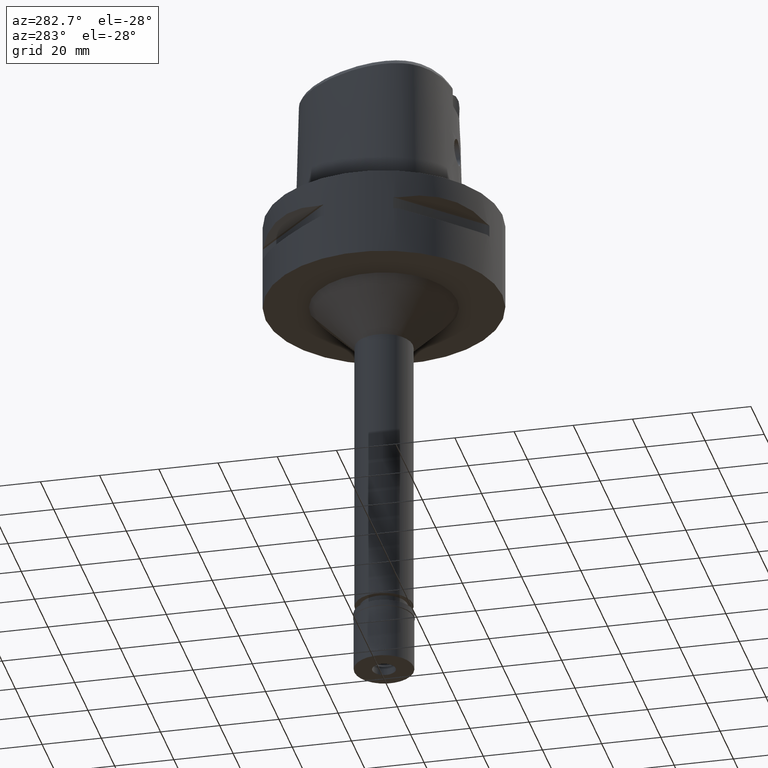
[diagram: clean part render]
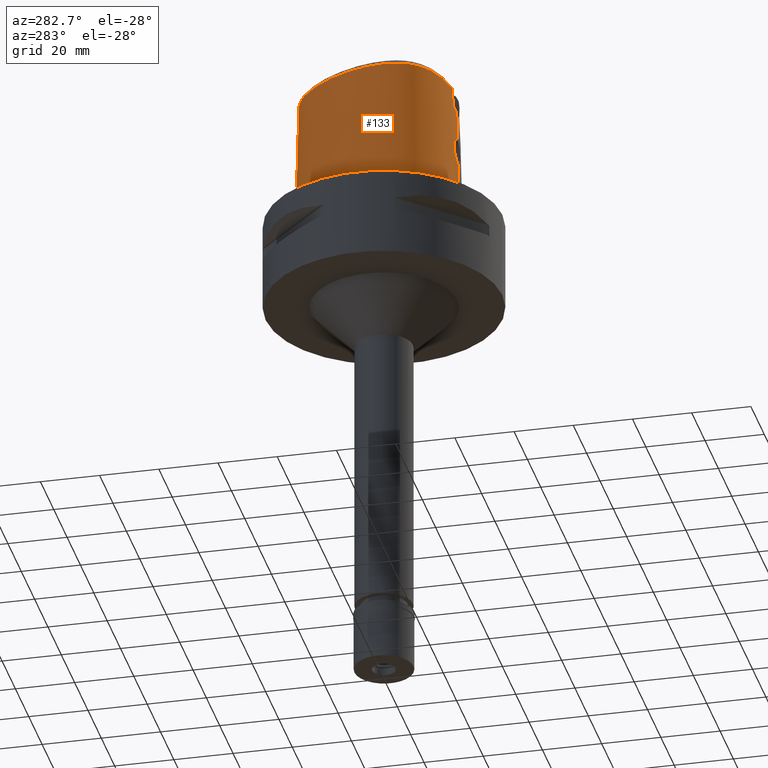
[diagram: same view with one face highlighted and labeled with its STEP entity id]
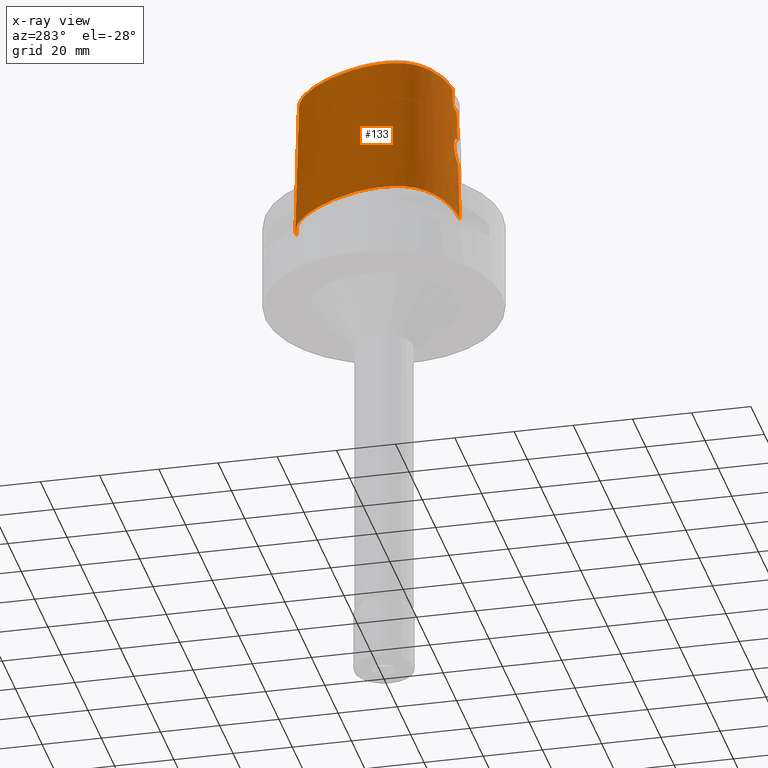
[diagram: x-ray of the same camera — body ghosted, the highlighted face saturated]
A machine part, auxiliary view. The second image highlights one B-rep face of the part: STEP entity #133.
The next image is the same camera in x-ray: the body ghosted, the highlighted face saturated — about 2% of this face is hidden behind the body in this view.
In plain terms, the highlighted face is a freeform B-spline surface patch.
Its self-contained STEP definition (entity closure, byte-faithful):
#16 = CARTESIAN_POINT ( 'NONE',  ( -2.978031838721042046, -24.94531787462550199, 21.54303487591371891 ) ) ;
#32 = CARTESIAN_POINT ( 'NONE',  ( -20.71467387648337066, -18.66855143331233435, 46.52070903171009775 ) ) ;
#56 = CARTESIAN_POINT ( 'NONE',  ( -26.36214112504000084, -1.945111148043999982, 47.45113829603000255 ) ) ;
#80 = CARTESIAN_POINT ( 'NONE',  ( -25.30843714907000219, -14.61183300056999990, 15.19676978108000043 ) ) ;
#105 = CARTESIAN_POINT ( 'NONE',  ( -1.451045074373000022E-08, -24.57504746727000011, 40.00000005214000254 ) ) ;
#107 = CARTESIAN_POINT ( 'NONE',  ( -9.316733117262000263, 26.81182150639000028, -0.9304144763927000295 ) ) ;
#133 = ADVANCED_FACE ( 'NONE', ( #1479 ), #3552, .T. ) ;
#157 = CARTESIAN_POINT ( 'NONE',  ( -2.393548608048999604, -25.62160468836000149, -0.9304144763927000295 ) ) ;
#184 = B_SPLINE_CURVE_WITH_KNOTS ( 'NONE', 3,
 ( #1542, #3118, #4635, #2711 ),
 .UNSPECIFIED., .F., .F.,
 ( 4, 4 ),
 ( 0.0000000000000000000, 1.000000000000000000 ),
 .UNSPECIFIED. ) ;
#187 = CARTESIAN_POINT ( 'NONE',  ( -6.271543170509000120, 28.37237220519999781, -0.9304144763927000295 ) ) ;
#215 = CARTESIAN_POINT ( 'NONE',  ( -14.86558287303000014, -21.85772792995999936, 47.45113829603000255 ) ) ;
#220 = VERTEX_POINT ( 'NONE', #3888 ) ;
#234 = CARTESIAN_POINT ( 'NONE',  ( -11.64093424010000000, -23.76831843816999523, 15.19676978108000043 ) ) ;
#245 = CARTESIAN_POINT ( 'NONE',  ( -3.149084873927517236, 29.34015624734590588, 1.081107220890151210E-07 ) ) ;
#295 = CARTESIAN_POINT ( 'NONE',  ( -4.098396066246055902, -24.72479182399337461, 26.97739233805751269 ) ) ;
#312 = CARTESIAN_POINT ( 'NONE',  ( -3.797137772289172375, -24.86229941254662279, 22.49313827486260564 ) ) ;
#321 = CARTESIAN_POINT ( 'NONE',  ( -2.249867388139984214, -24.79844751147312465, 28.95562542824798058 ) ) ;
#330 = CARTESIAN_POINT ( 'NONE',  ( -25.20914249734864754, 6.827421873979051092, 1.081107220890151210E-07 ) ) ;
#338 = CARTESIAN_POINT ( 'NONE',  ( -3.957281473798043514, -24.84276546235786043, 22.75305380327923999 ) ) ;
#361 = CARTESIAN_POINT ( 'NONE',  ( -1.049694957958702712, 29.57499999730015006, 1.081107220890151210E-07 ) ) ;
#374 = B_SPLINE_CURVE_WITH_KNOTS ( 'NONE', 3,
 ( #4319, #3540, #3461, #3060 ),
 .UNSPECIFIED., .F., .F.,
 ( 4, 4 ),
 ( 0.0000000000000000000, 1.000000000000000000 ),
 .UNSPECIFIED. ) ;
#380 = CARTESIAN_POINT ( 'NONE',  ( -1.371865276106448261, -24.82198728018540734, 29.33894196721532310 ) ) ;
#387 = CARTESIAN_POINT ( 'NONE',  ( -21.32746397970844399, 12.31340991043395761, 46.52070903171009775 ) ) ;
#398 = CARTESIAN_POINT ( 'NONE',  ( -3.227056402119971690, -24.92183285210593269, 21.79239637393090590 ) ) ;
#405 = CARTESIAN_POINT ( 'NONE',  ( -1.858668925429011187, -24.81033890557745281, 29.15501574767838733 ) ) ;
#406 = ORIENTED_EDGE ( 'NONE', *, *, #3039, .T. ) ;
#464 = CARTESIAN_POINT ( 'NONE',  ( -26.79474625771999996, 1.906447387330000076, -0.9304144763927000295 ) ) ;
#487 = CARTESIAN_POINT ( 'NONE',  ( -7.937300651752360103, -23.78071178103856553, 46.52070903171009775 ) ) ;
#488 = CARTESIAN_POINT ( 'NONE',  ( -25.65830880163000316, -14.81383149358999951, -0.9304144763927000295 ) ) ;
#501 = VERTEX_POINT ( 'NONE', #618 ) ;
#514 = CARTESIAN_POINT ( 'NONE',  ( -12.96695410020000061, 23.75598709915999862, 15.19676978108000043 ) ) ;
#543 = CARTESIAN_POINT ( 'NONE',  ( -26.66520868673000066, -5.367805582503000217, 47.45113829603000255 ) ) ;
#561 = DIRECTION ( 'NONE',  ( 9.468170009258231965E-13, 0.02499051293976060906, -0.9996876883622242138 ) ) ;
#566 = CARTESIAN_POINT ( 'NONE',  ( -8.894849814792998188, 26.12169678492999836, 31.32395403855000282 ) ) ;
#588 = CARTESIAN_POINT ( 'NONE',  ( 0.5595577616861000525, -24.78951189438999947, 31.32395403855000282 ) ) ;
#614 = CARTESIAN_POINT ( 'NONE',  ( -15.30623779600000134, -22.98697010186999989, -0.9304144763927000295 ) ) ;
#618 = CARTESIAN_POINT ( 'NONE',  ( -4.472216406693000579, -24.20008985674000357, 46.52070903171000538 ) ) ;
#648 = CARTESIAN_POINT ( 'NONE',  ( -18.55019648953511435, -21.45394531012197703, 1.081107220890151210E-07 ) ) ;
#660 = CARTESIAN_POINT ( 'NONE',  ( -18.56135208395999925, -21.47443746689999955, -0.9304144763927000295 ) ) ;
#696 = CARTESIAN_POINT ( 'NONE',  ( -4.472216406693000579, -24.20008985674000357, 46.52070903171000538 ) ) ;
#700 = CARTESIAN_POINT ( 'NONE',  ( -25.63812389625229216, -14.80217773302317141, 1.081107220890151210E-07 ) ) ;
#720 = CARTESIAN_POINT ( 'NONE',  ( -4.160790905031579001, -24.72274124955068686, 26.84178595757023444 ) ) ;
#763 = CARTESIAN_POINT ( 'NONE',  ( -3.896481458106559881, -24.85034248778501365, 22.65020889969181539 ) ) ;
#774 = CARTESIAN_POINT ( 'NONE',  ( -2.771982096822934505, -24.77983138410381869, 28.61121349796145807 ) ) ;
#779 = CARTESIAN_POINT ( 'NONE',  ( -12.44957317646843009, 23.16260189109612000, 46.52070903171009775 ) ) ;
#805 = CARTESIAN_POINT ( 'NONE',  ( -4.549596676163453424, -24.73138399865687731, 25.07048059281705576 ) ) ;
#819 = CARTESIAN_POINT ( 'NONE',  ( -1.888484788632717848, -25.01654759054933308, 20.86028587657998656 ) ) ;
#842 = CARTESIAN_POINT ( 'NONE',  ( -2.039991806420665021, -25.00858519317946360, 20.93235562228053226 ) ) ;
#857 = CARTESIAN_POINT ( 'NONE',  ( -26.68853359099139055, -5.367220537273029279, 46.52070903171009775 ) ) ;
#859 = CARTESIAN_POINT ( 'NONE',  ( -22.35908247767000034, 12.90902243050999942, -0.9304144763927000295 ) ) ;
#908 = CARTESIAN_POINT ( 'NONE',  ( -22.00846693117999919, 12.70659196843999972, 15.19676978108000043 ) ) ;
#918 = EDGE_CURVE ( 'NONE', #3978, #220, #3244, .T. ) ;
#936 = CARTESIAN_POINT ( 'NONE',  ( -25.23075706180999944, 6.836210430563999907, -0.9304144763927000295 ) ) ;
#966 = CARTESIAN_POINT ( 'NONE',  ( -26.50159628870000006, -8.602222732530000471, 47.45113829603000255 ) ) ;
#1015 = CARTESIAN_POINT ( 'NONE',  ( 0.8462420188559000023, -25.18772736009000113, 15.19676978108000043 ) ) ;
#1020 = ORIENTED_EDGE ( 'NONE', *, *, #2584, .F. ) ;
#1023 = CARTESIAN_POINT ( 'NONE',  ( -1.150414049173519748, -24.82628098737378153, 29.40485804970605699 ) ) ;
#1039 = CARTESIAN_POINT ( 'NONE',  ( -24.14246365694000218, -15.65707285815000027, 31.32395403855000282 ) ) ;
#1062 = CARTESIAN_POINT ( 'NONE',  ( 0.5902542487185999942, 29.18556700428999662, 15.19676978108000043 ) ) ;
#1065 = CARTESIAN_POINT ( 'NONE',  ( -2.354156828688999781, -24.81494221514999765, 31.32395403855000282 ) ) ;
#1067 = B_SPLINE_CURVE_WITH_KNOTS ( 'NONE', 3,
 ( #2315, #361, #245, #1902, #3871, #1852, #3897, #3929, #330, #3434, #2239, #1098, #5142, #1467, #2686, #700, #2292, #3483, #1569, #648, #3816, #5029, #5081, #3089, #4694 ),
 .UNSPECIFIED., .F., .F.,
 ( 4, 1, 1, 1, 1, 1, 1, 1, 1, 1, 1, 1, 1, 1, 1, 1, 1, 1, 1, 1, 1, 1, 4 ),
 ( 0.0000000000000000000, 0.04166666666704999661, 0.08333333333368000972, 0.1250000000003000100, 0.1666666666670000019, 0.2500000000002000067, 0.3333333333335000148, 0.4166666666668000230, 0.4583333333333999837, 0.5000000000001000311, 0.5416666666667000474, 0.5833333333333000637, 0.6250000000000000000, 0.6458333333333000637, 0.6666666666667000474, 0.6874999999999000799, 0.7083333333332000326, 0.7499999999999000799, 0.7916666666666000163, 0.8333333333331000015, 0.8749999999998000488, 0.9166666666664999852, 1.000000000000000000 ),
 .UNSPECIFIED. ) ;
#1086 = CARTESIAN_POINT ( 'NONE',  ( 0.9115101685673999699, 29.56851175997000070, -0.9304144763927000295 ) ) ;
#1090 = CARTESIAN_POINT ( 'NONE',  ( -23.44929528154000309, -17.78045351947999819, -0.9304144763927000295 ) ) ;
#1098 = CARTESIAN_POINT ( 'NONE',  ( -27.85475989473649250, -5.337968750068384338, 1.081107220890151210E-07 ) ) ;
#1113 = CARTESIAN_POINT ( 'NONE',  ( -1.003044292487226929, -24.82866638025620887, 29.44055839642895478 ) ) ;
#1132 = CARTESIAN_POINT ( 'NONE',  ( -1.165430911961757188, -25.05044697737379167, 20.55812161079594347 ) ) ;
#1141 = CARTESIAN_POINT ( 'NONE',  ( -4.201380620709784353, -24.72153596869750913, 26.74670933509911563 ) ) ;
#1161 = CARTESIAN_POINT ( 'NONE',  ( -3.702709904148339781, -24.87336589807970100, 22.35148037005131272 ) ) ;
#1172 = CARTESIAN_POINT ( 'NONE',  ( -1.733314166582773153, -24.81359117582309892, 29.20692116581517084 ) ) ;
#1175 = CARTESIAN_POINT ( 'NONE',  ( -25.97777222568459266, -11.09135444108253843, 46.52070903171009775 ) ) ;
#1190 = CARTESIAN_POINT ( 'NONE',  ( -3.232655617673357185, -24.92130312931369218, 21.79804365392788768 ) ) ;
#1203 = CARTESIAN_POINT ( 'NONE',  ( -3.459328791574007411, -24.75086403572711191, 27.97515479134742833 ) ) ;
#1219 = CARTESIAN_POINT ( 'NONE',  ( -4.156037652092123835, -24.81598364112163679, 23.14362525770374646 ) ) ;
#1224 = VECTOR ( 'NONE', #561, 1000.000000000000227 ) ;
#1237 = CARTESIAN_POINT ( 'NONE',  ( -24.62887906780939318, -14.21948995895654022, 46.52070903171009775 ) ) ;
#1244 = CARTESIAN_POINT ( 'NONE',  ( -3.808704889424079809, -24.86093372512832289, 22.51074749453151114 ) ) ;
#1258 = CARTESIAN_POINT ( 'NONE',  ( -1.346037188249999996E-11, 28.41206021534999593, 46.52071719450999154 ) ) ;
#1352 = CARTESIAN_POINT ( 'NONE',  ( -27.47379251623999963, -5.347524336879999396, 15.19676978108000043 ) ) ;
#1376 = CARTESIAN_POINT ( 'NONE',  ( -0.7039271475812000078, 28.82397290591000427, 31.32395403855000282 ) ) ;
#1405 = CARTESIAN_POINT ( 'NONE',  ( -15.01246784735000084, -22.23414198726000279, 31.32395403855000282 ) ) ;
#1451 = CARTESIAN_POINT ( 'NONE',  ( -4.602965878455999693, -24.35127227233000013, 40.00000000000000000 ) ) ;
#1453 = CARTESIAN_POINT ( 'NONE',  ( -2.334460939009000313, -24.41161097854999795, 47.45113829603000255 ) ) ;
#1467 = CARTESIAN_POINT ( 'NONE',  ( -27.10051717109255165, -11.41106445238337486, 1.081107220890151210E-07 ) ) ;
#1479 = FACE_OUTER_BOUND ( 'NONE', #4684, .T. ) ;
#1506 = CARTESIAN_POINT ( 'NONE',  ( -4.494536868534346752, -24.72037511897826789, 25.72370608056143837 ) ) ;
#1534 = CARTESIAN_POINT ( 'NONE',  ( -0.5644801122068425769, -24.83439132317404230, 29.52465347867333634 ) ) ;
#1542 = CARTESIAN_POINT ( 'NONE',  ( -1.451045074373000022E-08, -24.57504746727000011, 40.00000005214000254 ) ) ;
#1548 = CARTESIAN_POINT ( 'NONE',  ( -1.405744793948999911E-12, -25.06378435148999984, 20.44999999999999929 ) ) ;
#1559 = CARTESIAN_POINT ( 'NONE',  ( -3.657706900528192584, -24.74222987758971115, 27.72260022702115734 ) ) ;
#1562 = CARTESIAN_POINT ( 'NONE',  ( -24.12841474589034974, 6.387994236496290057, 46.52070903171009775 ) ) ;
#1569 = CARTESIAN_POINT ( 'NONE',  ( -21.42129059199266905, -19.59889648221216518, 1.081107220890151210E-07 ) ) ;
#1575 = CARTESIAN_POINT ( 'NONE',  ( -2.349040166738168622, -24.99044712210619679, 21.10040994411799176 ) ) ;
#1581 = CARTESIAN_POINT ( 'NONE',  ( -4.515545264919025747, -24.72200876241212697, 25.57765437787082163 ) ) ;
#1585 = CARTESIAN_POINT ( 'NONE',  ( -0.9629684636073263526, 28.41206041874331945, 46.52070903171009775 ) ) ;
#1600 = CARTESIAN_POINT ( 'NONE',  ( -4.219931661120497779, -24.80642684597901848, 23.29859562715307675 ) ) ;
#1647 = CARTESIAN_POINT ( 'NONE',  ( -26.52477687770711512, -8.605158286269462664, 46.52070903171009775 ) ) ;
#1667 = CARTESIAN_POINT ( 'NONE',  ( -1.346037188249999996E-11, 28.41206021534999593, 46.52071719450999154 ) ) ;
#1668 = CARTESIAN_POINT ( 'NONE',  ( -27.87808443098999689, -5.337383714069000362, -0.9304144763927000295 ) ) ;
#1674 = VERTEX_POINT ( 'NONE', #2487 ) ;
#1695 = CARTESIAN_POINT ( 'NONE',  ( -27.30517726890999697, -8.703986978065000102, 15.19676978108000043 ) ) ;
#1717 = CARTESIAN_POINT ( 'NONE',  ( -1.541632516112891427, -24.57506718850316929, 40.00000010711480058 ) ) ;
#1719 = CARTESIAN_POINT ( 'NONE',  ( -12.43420517475000153, 23.14497629942999879, 47.45113829603000255 ) ) ;
#1742 = CARTESIAN_POINT ( 'NONE',  ( -24.85610465468000285, 6.683875467458999964, 15.19676978108000043 ) ) ;
#1758 = LINE ( 'NONE', #3707, #1224 ) ;
#1787 = CARTESIAN_POINT ( 'NONE',  ( -6.114741924760999758, 27.99897533574999997, 15.19676978108000043 ) ) ;
#1791 = CARTESIAN_POINT ( 'NONE',  ( 0.8321919557715999893, -24.38153432968000089, 47.45113829603000255 ) ) ;
#1814 = CARTESIAN_POINT ( 'NONE',  ( -11.74634101483999871, -24.15815461092999783, -0.9304144763927000295 ) ) ;
#1836 = CARTESIAN_POINT ( 'NONE',  ( -20.94550185283999966, -18.97246395085999993, 31.32395403855000282 ) ) ;
#1852 = CARTESIAN_POINT ( 'NONE',  ( -13.21796080366969761, 24.04386718545104884, 1.081107220890151210E-07 ) ) ;
#1857 = CARTESIAN_POINT ( 'NONE',  ( -3.192130741525157855, -24.76262039752747057, 28.24235843699960569 ) ) ;
#1895 = CARTESIAN_POINT ( 'NONE',  ( -4.322680882352817555, -24.71812462909636210, 26.45319451589575266 ) ) ;
#1902 = CARTESIAN_POINT ( 'NONE',  ( -6.262496943741631128, 28.35083007561321367, 1.081107220890151210E-07 ) ) ;
#1910 = CARTESIAN_POINT ( 'NONE',  ( -4.207829589086045985, -24.80824686016802261, 23.26889234074807078 ) ) ;
#1917 = CARTESIAN_POINT ( 'NONE',  ( -1.482686770870140114, -24.81966152212502763, 29.30289444251079800 ) ) ;
#1935 = CARTESIAN_POINT ( 'NONE',  ( -4.212409792926581353, -24.80756021599265537, 23.28005703556016925 ) ) ;
#1975 = CARTESIAN_POINT ( 'NONE',  ( -3.211065830876445037, -24.76179211193618457, 28.22361125334742482 ) ) ;
#1980 = CARTESIAN_POINT ( 'NONE',  ( -2.897876354790306141, 28.19692242654317837, 46.52070903171009775 ) ) ;
#1990 = CARTESIAN_POINT ( 'NONE',  ( -3.825895809632645417, -24.85889621362734303, 22.53711802513210216 ) ) ;
#2005 = CARTESIAN_POINT ( 'NONE',  ( -11.43620194735458107, -23.01113699853129546, 46.52070903171009775 ) ) ;
#2016 = CARTESIAN_POINT ( 'NONE',  ( -1.843442154715413395, -25.01881181296652912, 20.83994273181284385 ) ) ;
#2078 = CARTESIAN_POINT ( 'NONE',  ( -17.77103258626999605, 19.53703864445999727, -0.9304144763927000295 ) ) ;
#2104 = CARTESIAN_POINT ( 'NONE',  ( -24.48145224753999827, 6.531540504352999932, 31.32395403855000282 ) ) ;
#2111 = ORIENTED_EDGE ( 'NONE', *, *, #4963, .T. ) ;
#2130 = CARTESIAN_POINT ( 'NONE',  ( -27.12297207980000024, -11.41745865540000082, -0.9304144763927000295 ) ) ;
#2172 = CARTESIAN_POINT ( 'NONE',  ( 0.6077626423659999721, 29.58843421366000115, -0.9304144763927000295 ) ) ;
#2176 = CARTESIAN_POINT ( 'NONE',  ( 0.8392169873136999803, -24.78463084487999879, 31.32395403855000282 ) ) ;
#2206 = CARTESIAN_POINT ( 'NONE',  ( -20.70054131303000133, -18.64994423063999918, 47.45113829603000255 ) ) ;
#2215 = CARTESIAN_POINT ( 'NONE',  ( -2.520279592226922993, -24.78912363236071315, 28.78824203054359288 ) ) ;
#2231 = CARTESIAN_POINT ( 'NONE',  ( -21.19046239266000242, -19.29498367109000156, 15.19676978108000043 ) ) ;
#2239 = CARTESIAN_POINT ( 'NONE',  ( -27.53737511592663623, -1.765625000409068557, 1.081107220890151210E-07 ) ) ;
#2276 = CARTESIAN_POINT ( 'NONE',  ( 0.5552374614238999584, 28.37983258556999999, 47.45113829603000255 ) ) ;
#2292 = CARTESIAN_POINT ( 'NONE',  ( -24.77458493275388918, -16.12173827965531459, 1.081107220890151210E-07 ) ) ;
#2306 = CARTESIAN_POINT ( 'NONE',  ( -4.198926685531663594, -24.72160612811941505, 26.75259212958650323 ) ) ;
#2315 = CARTESIAN_POINT ( 'NONE',  ( 3.059999461773999954E-11, 29.57499999998999840, 5.010806584474999824E-14 ) ) ;
#2334 = CARTESIAN_POINT ( 'NONE',  ( -3.125212091967373595, -24.76551320166747416, 28.30726214217308723 ) ) ;
#2353 = CARTESIAN_POINT ( 'NONE',  ( -1.754298049354317213, -25.02308377135080875, 20.80178576367013932 ) ) ;
#2363 = CARTESIAN_POINT ( 'NONE',  ( -2.352923008986411268, -24.79499099983797450, 28.89459205334612335 ) ) ;
#2366 = ORIENTED_EDGE ( 'NONE', *, *, #4426, .F. ) ;
#2379 = CARTESIAN_POINT ( 'NONE',  ( -1.791332517422943749, -25.02133236723710041, 20.81740716610678987 ) ) ;
#2388 = B_SPLINE_CURVE_WITH_KNOTS ( 'NONE', 3,
 ( #105, #1717, #3827, #1451 ),
 .UNSPECIFIED., .F., .F.,
 ( 4, 4 ),
 ( 0.0000000000000000000, 1.000000000000000000 ),
 .UNSPECIFIED. ) ;
#2391 = CARTESIAN_POINT ( 'NONE',  ( -4.550009659928407224, -24.73228693208369933, 25.03285394944704123 ) ) ;
#2405 = CARTESIAN_POINT ( 'NONE',  ( -1.748501813549813599, -25.02335543620022307, 20.79936485166495430 ) ) ;
#2432 = B_SPLINE_CURVE_WITH_KNOTS ( 'NONE', 3,
 ( #696, #3057, #487, #2005, #3534, #4795, #32, #4844, #4737, #1237, #3202, #1175, #1647, #857, #3615, #2757, #1562, #387, #3227, #779, #5163, #2811, #1980, #1585, #1667 ),
 .UNSPECIFIED., .F., .F.,
 ( 4, 1, 1, 1, 1, 1, 1, 1, 1, 1, 1, 1, 1, 1, 1, 1, 1, 1, 1, 1, 1, 1, 4 ),
 ( 0.0000000000000000000, 0.03735859270279102973, 0.08111502030725251111, 0.1248714479117141174, 0.1686278755159656140, 0.2123843031204271092, 0.2561407307248886878, 0.2780189445270669357, 0.2998971583291402121, 0.3217753721314234872, 0.3436535859336017906, 0.3874100135380633136, 0.4311664411424198651, 0.4749228687467764165, 0.5186792963512379950, 0.5624357239555944910, 0.6499485791644126209, 0.7374614343732307509, 0.8249742895819437427, 0.8687307171864053768, 0.9124871447907828559, 0.9562435723951708821, 1.000000000000000000 ),
 .UNSPECIFIED. ) ;
#2450 = CARTESIAN_POINT ( 'NONE',  ( -5.957940679013999485, 27.62557846629000124, 31.32395403855000282 ) ) ;
#2487 = CARTESIAN_POINT ( 'NONE',  ( -1.451045074373000022E-08, -24.57504746727000011, 40.00000005214000254 ) ) ;
#2501 = CARTESIAN_POINT ( 'NONE',  ( -24.10679984039999724, 6.379205541247999989, 47.45113829603000255 ) ) ;
#2555 = CARTESIAN_POINT ( 'NONE',  ( -25.26074793916000161, -12.91722051712999964, 47.45113829603000255 ) ) ;
#2575 = CARTESIAN_POINT ( 'NONE',  ( -3.154109046502999725, 29.36302093374000322, -0.9304144763927000295 ) ) ;
#2578 = CARTESIAN_POINT ( 'NONE',  ( -6.584202217038999549, -24.46732447795000098, 31.32395403855000282 ) ) ;
#2584 = EDGE_CURVE ( 'NONE', #3086, #3978, #3251, .T. ) ;
#2611 = CARTESIAN_POINT ( 'NONE',  ( -1.984502176480205771, -24.80676203802992319, 29.09712838306113269 ) ) ;
#2627 = CARTESIAN_POINT ( 'NONE',  ( -22.86810882087999630, -17.21714036511000145, 31.32395403855000282 ) ) ;
#2667 = CARTESIAN_POINT ( 'NONE',  ( 0.5727458550712000163, 28.78269979493000363, 31.32395403855000282 ) ) ;
#2673 = CARTESIAN_POINT ( 'NONE',  ( -11.53552746536000129, -23.37848226540000240, 31.32395403855000282 ) ) ;
#2686 = CARTESIAN_POINT ( 'NONE',  ( -26.34912736971354619, -13.39455078015881817, 1.081107220890151210E-07 ) ) ;
#2711 = CARTESIAN_POINT ( 'NONE',  ( 1.372734075386999954E-14, -24.83629963747999980, 29.55000000000000071 ) ) ;
#2718 = CARTESIAN_POINT ( 'NONE',  ( -4.256460948041309145, -24.80084657812259863, 23.39133378591556678 ) ) ;
#2728 = CARTESIAN_POINT ( 'NONE',  ( -3.172181247292561235, -24.76348918694394285, 28.26195868750398077 ) ) ;
#2745 = CARTESIAN_POINT ( 'NONE',  ( -4.231109674115377750, -24.80473516988229221, 23.32640847146415197 ) ) ;
#2753 = CARTESIAN_POINT ( 'NONE',  ( -2.466259342607413974, -24.79105701084885993, 28.82372012011356333 ) ) ;
#2757 = CARTESIAN_POINT ( 'NONE',  ( -25.64632274977750370, 1.601536978523942389, 46.52070903171009775 ) ) ;
#2783 = CARTESIAN_POINT ( 'NONE',  ( -4.547910621292748701, -24.72974527037225911, 25.14250056299538727 ) ) ;
#2797 = CARTESIAN_POINT ( 'NONE',  ( -4.549921019084919749, -24.74001865967037972, 24.72536366591872437 ) ) ;
#2811 = CARTESIAN_POINT ( 'NONE',  ( -5.810185802762156015, 27.27372406630292545, 46.52070903171009775 ) ) ;
#2855 = CARTESIAN_POINT ( 'NONE',  ( -1.405744793948999911E-12, -25.06378435148999984, 20.44999999999999929 ) ) ;
#2859 = CARTESIAN_POINT ( 'NONE',  ( -26.34453533505999800, -11.19579297658999906, 31.32395403855000282 ) ) ;
#2903 = CARTESIAN_POINT ( 'NONE',  ( -26.01411827047999736, 1.699187959890000155, 31.32395403855000282 ) ) ;
#2931 = CARTESIAN_POINT ( 'NONE',  ( -25.63065467456999968, -13.07945041081000070, 31.32395403855000282 ) ) ;
#2953 = CARTESIAN_POINT ( 'NONE',  ( -0.6821018006546000212, 28.41983321523000328, 47.45113829603000255 ) ) ;
#2980 = CARTESIAN_POINT ( 'NONE',  ( -6.695047936503000230, -25.26858194619999765, -0.9304144763927000295 ) ) ;
#3003 = CARTESIAN_POINT ( 'NONE',  ( -21.43542293247000075, -19.61750339130999876, -0.9304144763927000295 ) ) ;
#3024 = CARTESIAN_POINT ( 'NONE',  ( 0.8322161961230999383, 28.36171632487999972, 47.45113829603000255 ) ) ;
#3039 = EDGE_CURVE ( 'NONE', #1674, #4372, #2388, .T. ) ;
#3057 = CARTESIAN_POINT ( 'NONE',  ( -5.572548441001075936, -24.09475885057442923, 46.52070903171009775 ) ) ;
#3060 = CARTESIAN_POINT ( 'NONE',  ( -4.602965878455999693, -24.35127227233000013, 40.00000000000000000 ) ) ;
#3077 = CARTESIAN_POINT ( 'NONE',  ( -1.676286854296592299, -24.81504355059169242, 29.23004141242347842 ) ) ;
#3086 = VERTEX_POINT ( 'NONE', #3392 ) ;
#3089 = CARTESIAN_POINT ( 'NONE',  ( -2.676740185393376326, -25.57499999729582285, 1.081107220890151210E-07 ) ) ;
#3107 = CARTESIAN_POINT ( 'NONE',  ( -4.183313010706772417, -24.72206008749300921, 26.78965014441195791 ) ) ;
#3118 = CARTESIAN_POINT ( 'NONE',  ( -4.849311547229183337E-09, -24.66214466419974016, 36.51666702991068547 ) ) ;
#3135 = CARTESIAN_POINT ( 'NONE',  ( -3.900686180413630577, -24.73222278675433472, 27.34720371155059837 ) ) ;
#3156 = CARTESIAN_POINT ( 'NONE',  ( -1.769098408929377975, -25.02238666794960054, 20.80800104489343383 ) ) ;
#3165 = CARTESIAN_POINT ( 'NONE',  ( -4.536359085941239044, -24.72544551544415015, 25.35955479186053196 ) ) ;
#3166 = ORIENTED_EDGE ( 'NONE', *, *, #3493, .T. ) ;
#3187 = CARTESIAN_POINT ( 'NONE',  ( -3.994669282579361269, -24.83794919743792562, 22.82040209576821610 ) ) ;
#3202 = CARTESIAN_POINT ( 'NONE',  ( -25.28208905154512820, -12.92658008283084747, 46.52070903171009775 ) ) ;
#3227 = CARTESIAN_POINT ( 'NONE',  ( -16.85032607016324491, 18.77963051275819595, 46.52070903171009775 ) ) ;
#3228 = CARTESIAN_POINT ( 'NONE',  ( -8.683908163557999771, 25.77663442420000095, 47.45113829603000255 ) ) ;
#3244 = LINE ( 'NONE', #2855, #4436 ) ;
#3248 = CARTESIAN_POINT ( 'NONE',  ( -26.90338677880000162, -8.653104855297998554, 31.32395403855000282 ) ) ;
#3251 = B_SPLINE_CURVE_WITH_KNOTS ( 'NONE', 3,
 ( #4189, #5072, #1534, #1113, #1023, #380, #1917, #4336, #3077, #3500, #3890, #1172, #405, #2611, #3530, #321, #2363, #3556, #2753, #3477, #3579, #2215, #4310, #774, #4365, #3793, #2334, #2728, #1857, #4683, #1975, #1203, #1559, #3135, #5102, #3948, #295, #4283, #720, #3107, #4709, #2306, #1141, #1895, #5157, #1506, #1581, #3165, #4761, #2783, #805, #2391, #2797, #4407, #5149, #4700, #3905, #5176, #2718, #2745, #1600, #1935, #1910, #1219, #4326, #3187, #338, #763, #4726, #1990, #1244, #312, #4355, #1161, #4782, #4380, #3572, #4301, #4807, #3966, #1190, #398, #16, #5089, #1575, #3546, #842, #3517, #819, #2016, #2379, #3156, #2353, #2405, #1132, #5118, #1548 ),
 .UNSPECIFIED., .F., .F.,
 ( 4, 2, 2, 1, 1, 1, 2, 2, 2, 2, 1, 1, 2, 2, 2, 1, 1, 1, 2, 2, 2, 2, 2, 1, 1, 2, 2, 2, 2, 1, 2, 2, 2, 2, 1, 1, 1, 2, 2, 2, 2, 1, 1, 2, 2, 2, 1, 1, 1, 2, 2, 2, 2, 2, 1, 1, 2, 2, 4 ),
 ( 0.0000000000000000000, 0.06249999999998905043, 0.09374999999998356870, 0.1093749999999808348, 0.1171874999999794748, 0.1210937499999787531, 0.1230468749999785588, 0.1249999999999783507, 0.1562499999999781286, 0.1718749999999779621, 0.1796874999999778511, 0.1835937499999777678, 0.1855468749999779066, 0.1874999999999780176, 0.2187499999999800437, 0.2343749999999812650, 0.2421874999999818201, 0.2460937499999820977, 0.2480468749999824585, 0.2499999999999828471, 0.3125000000000057732, 0.3437500000000175415, 0.3593750000000238143, 0.3671875000000265343, 0.3710937500000279221, 0.3730468750000282552, 0.3750000000000285327, 0.4375000000000252576, 0.4687500000000232592, 0.4843750000000222045, 0.4921875000000220934, 0.5000000000000219824, 0.5625000000000232037, 0.5937500000000235367, 0.6093750000000233147, 0.6171875000000233147, 0.6210937500000229816, 0.6230468750000228706, 0.6250000000000227596, 0.6562500000000179856, 0.6718750000000157652, 0.6796875000000145439, 0.6835937500000139888, 0.6855468750000134337, 0.6875000000000128786, 0.7187500000000042188, 0.7343749999999995559, 0.7421874999999972244, 0.7460937499999960032, 0.7480468749999956701, 0.7499999999999952260, 0.8124999999999943379, 0.8437499999999938938, 0.8593749999999935607, 0.8671874999999934497, 0.8710937499999934497, 0.8730468749999934497, 0.8749999999999934497, 1.000000000000000000 ),
 .UNSPECIFIED. ) ;
#3276 = CARTESIAN_POINT ( 'NONE',  ( -21.65785138469999893, 12.50416150638000090, 31.32395403855000282 ) ) ;
#3297 = CARTESIAN_POINT ( 'NONE',  ( -16.83227270865999969, 18.76477913224999838, 47.45113829603000255 ) ) ;
#3321 = CARTESIAN_POINT ( 'NONE',  ( -26.76156705748999798, -1.884109319950000083, 31.32395403855000282 ) ) ;
#3348 = CARTESIAN_POINT ( 'NONE',  ( -22.57751559056000090, -16.93548378792000264, 47.45113829603000255 ) ) ;
#3372 = CARTESIAN_POINT ( 'NONE',  ( -6.528779357306999209, -24.06669574382000221, 47.45113829603000255 ) ) ;
#3392 = CARTESIAN_POINT ( 'NONE',  ( 1.372734075386999954E-14, -24.83629963747999980, 29.55000000000000071 ) ) ;
#3394 = CARTESIAN_POINT ( 'NONE',  ( -6.639625076771000778, -24.86795321207000242, 15.19676978108000043 ) ) ;
#3414 = CARTESIAN_POINT ( 'NONE',  ( 0.8850788444192999593, 29.16624661494000037, 15.19676978108000043 ) ) ;
#3419 = CARTESIAN_POINT ( 'NONE',  ( 0.8532670503981000243, -25.59082387528999902, -0.9304144763927000295 ) ) ;
#3434 = CARTESIAN_POINT ( 'NONE',  ( -26.77222814008693774, 1.900468749305304295, 1.081107220890151210E-07 ) ) ;
#3448 = CARTESIAN_POINT ( 'NONE',  ( -18.36798846973000465, -21.11924012401999917, 15.19676978108000043 ) ) ;
#3461 = CARTESIAN_POINT ( 'NONE',  ( -4.560197131398992632, -24.30012325357083469, 42.17356967723666372 ) ) ;
#3477 = CARTESIAN_POINT ( 'NONE',  ( -2.492689275653129588, -24.79011428768484748, 28.80645659143079484 ) ) ;
#3483 = CARTESIAN_POINT ( 'NONE',  ( -23.43253028553446882, -17.76420409967707670, 1.081107220890151210E-07 ) ) ;
#3486 = ORIENTED_EDGE ( 'NONE', *, *, #918, .F. ) ;
#3493 = EDGE_CURVE ( 'NONE', #5001, #4710, #1758, .T. ) ;
#3500 = CARTESIAN_POINT ( 'NONE',  ( -1.703896036126127278, -24.81434470502067668, 29.21892603896870710 ) ) ;
#3517 = CARTESIAN_POINT ( 'NONE',  ( -1.979024681900256155, -25.01188081594408175, 20.90239184516246951 ) ) ;
#3530 = CARTESIAN_POINT ( 'NONE',  ( -2.182391158249092911, -24.80062287573412760, 28.99314679185866339 ) ) ;
#3534 = CARTESIAN_POINT ( 'NONE',  ( -14.87405714085098118, -21.87944447072879228, 46.52070903171009775 ) ) ;
#3540 = CARTESIAN_POINT ( 'NONE',  ( -4.516620139914707011, -24.24973684088320525, 44.34713935447333455 ) ) ;
#3546 = CARTESIAN_POINT ( 'NONE',  ( -2.224291573382352727, -24.99814500580220766, 21.02832322412745825 ) ) ;
#3552 = B_SPLINE_SURFACE_WITH_KNOTS ( 'NONE', 3, 3, ( 
 ( #1086, #3414, #5016, #3024 ),
 ( #2172, #1062, #2667, #2276 ),
 ( #3856, #4948, #1376, #2953 ),
 ( #2575, #4548, #4153, #3756 ),
 ( #187, #1787, #2450, #4526 ),
 ( #107, #4135, #566, #3228 ),
 ( #4820, #514, #4471, #1719 ),
 ( #2078, #4422, #4868, #3297 ),
 ( #859, #908, #3276, #4029 ),
 ( #936, #1742, #2104, #2501 ),
 ( #464, #3640, #2903, #4082 ),
 ( #4494, #4113, #3321, #56 ),
 ( #1668, #1352, #3662, #543 ),
 ( #4057, #1695, #3248, #966 ),
 ( #2130, #4845, #2859, #4449 ),
 ( #3712, #4921, #2931, #2555 ),
 ( #488, #80, #3688, #4649 ),
 ( #3760, #3808, #1039, #5020 ),
 ( #1090, #3831, #2627, #3348 ),
 ( #3003, #2231, #1836, #2206 ),
 ( #660, #3448, #4572, #4551 ),
 ( #614, #3785, #1405, #215 ),
 ( #1814, #234, #2673, #4951 ),
 ( #2980, #3394, #2578, #3372 ),
 ( #157, #4182, #1065, #1453 ),
 ( #5044, #4976, #588, #4996 ),
 ( #3419, #1015, #2176, #1791 ) ),
 .UNSPECIFIED., .F., .F., .F.,
 ( 4, 1, 1, 1, 1, 1, 1, 1, 1, 1, 1, 1, 1, 1, 1, 1, 1, 1, 1, 1, 1, 1, 1, 1, 4 ),
 ( 4, 4 ),
 ( -0.01204223939038000062, 0.0000000000000000000, 0.04166666666704999661, 0.08333333333368000972, 0.1250000000003000100, 0.1666666666670000019, 0.2500000000002000067, 0.3333333333335000148, 0.4166666666668000230, 0.4583333333333999837, 0.5000000000001000311, 0.5416666666667000474, 0.5833333333333000637, 0.6250000000000000000, 0.6458333333333000637, 0.6666666666667000474, 0.6874999999999000799, 0.7083333333332000326, 0.7499999999999000799, 0.7916666666666000163, 0.8333333333331000015, 0.8749999999998000488, 0.9166666666664999852, 1.000000000000000000, 1.008851807892999997 ),
 ( 5.343273171142999983E-09, 0.9999997274929999236 ),
 .UNSPECIFIED. ) ;
#3556 = CARTESIAN_POINT ( 'NONE',  ( -2.404910036721157773, -24.79321437770949998, 28.86288751850016610 ) ) ;
#3572 = CARTESIAN_POINT ( 'NONE',  ( -3.399231802462692631, -24.90521494129050595, 21.97387284700376142 ) ) ;
#3579 = CARTESIAN_POINT ( 'NONE',  ( -2.510338385227682156, -24.78948177504959816, 28.79484028636983695 ) ) ;
#3615 = CARTESIAN_POINT ( 'NONE',  ( -26.38518529509141075, -1.941591755871784342, 46.52070903171009775 ) ) ;
#3640 = CARTESIAN_POINT ( 'NONE',  ( -26.40443226410000221, 1.802817673609999893, 15.19676978108000043 ) ) ;
#3662 = CARTESIAN_POINT ( 'NONE',  ( -27.06950060148000148, -5.357664959691000206, 31.32395403855000282 ) ) ;
#3688 = CARTESIAN_POINT ( 'NONE',  ( -24.95856549652000211, -14.40983450753999939, 31.32395403855000282 ) ) ;
#3707 = CARTESIAN_POINT ( 'NONE',  ( -1.346037188249999996E-11, 28.41206021534999593, 46.52071719450999154 ) ) ;
#3712 = CARTESIAN_POINT ( 'NONE',  ( -26.37046814538999939, -13.40391019819000107, -0.9304144763927000295 ) ) ;
#3756 = CARTESIAN_POINT ( 'NONE',  ( -2.892852102933999969, 28.17405737940000066, 47.45113829603000255 ) ) ;
#3760 = CARTESIAN_POINT ( 'NONE',  ( -24.79336081447999973, -16.13554022451999970, -0.9304144763927000295 ) ) ;
#3785 = CARTESIAN_POINT ( 'NONE',  ( -15.15935282166999798, -22.61055604456000268, 15.19676978108000043 ) ) ;
#3793 = CARTESIAN_POINT ( 'NONE',  ( -3.029613744919227081, -24.76954858878827892, 28.39612668127736939 ) ) ;
#3808 = CARTESIAN_POINT ( 'NONE',  ( -24.46791223571000273, -15.89630654132999688, 15.19676978108000043 ) ) ;
#3816 = CARTESIAN_POINT ( 'NONE',  ( -15.29776366188092496, -22.96525390373262709, 1.081107220890151210E-07 ) ) ;
#3827 = CARTESIAN_POINT ( 'NONE',  ( -3.083107012282437775, -24.50056602082053914, 40.00000010711480058 ) ) ;
#3831 = CARTESIAN_POINT ( 'NONE',  ( -23.15870205120999969, -17.49879694228999938, 15.19676978108000043 ) ) ;
#3856 = CARTESIAN_POINT ( 'NONE',  ( -0.7475778414345000122, 29.63225228726999916, -0.9304144763927000295 ) ) ;
#3871 = CARTESIAN_POINT ( 'NONE',  ( -9.304563405199751003, 26.79191406018855659, 1.081107220890151210E-07 ) ) ;
#3888 = CARTESIAN_POINT ( 'NONE',  ( -1.130678250848000183E-11, -25.57499999999999929, 5.651035195341998828E-14 ) ) ;
#3890 = CARTESIAN_POINT ( 'NONE',  ( -1.722296434336842763, -24.81387508079694015, 29.21144792399064016 ) ) ;
#3897 = CARTESIAN_POINT ( 'NONE',  ( -17.75297950960305116, 19.52218749826894850, 1.081107220890151210E-07 ) ) ;
#3905 = CARTESIAN_POINT ( 'NONE',  ( -4.340344041599830227, -24.78724112967246995, 23.63256450709636525 ) ) ;
#3929 = CARTESIAN_POINT ( 'NONE',  ( -22.33885465532980419, 12.89734374864895017, 1.081107220890151210E-07 ) ) ;
#3948 = CARTESIAN_POINT ( 'NONE',  ( -4.068466760403409488, -24.72584630863870103, 27.03834969239067121 ) ) ;
#3966 = CARTESIAN_POINT ( 'NONE',  ( -3.245740051672676429, -24.92006245179830159, 21.81130774429477981 ) ) ;
#3978 = VERTEX_POINT ( 'NONE', #4270 ) ;
#4029 = CARTESIAN_POINT ( 'NONE',  ( -21.30723583822000222, 12.30173104430999942, 47.45113829603000255 ) ) ;
#4057 = CARTESIAN_POINT ( 'NONE',  ( -27.70696775900999853, -8.754869100831999873, -0.9304144763927000295 ) ) ;
#4082 = CARTESIAN_POINT ( 'NONE',  ( -25.62380427685999962, 1.595558246170000194, 47.45113829603000255 ) ) ;
#4113 = CARTESIAN_POINT ( 'NONE',  ( -27.16099298993999867, -1.823107491857000051, 15.19676978108000043 ) ) ;
#4135 = CARTESIAN_POINT ( 'NONE',  ( -9.105791466027000070, 26.46675914565999932, 15.19676978108000043 ) ) ;
#4153 = CARTESIAN_POINT ( 'NONE',  ( -2.979937750791000095, 28.57037856418000032, 31.32395403855000282 ) ) ;
#4182 = CARTESIAN_POINT ( 'NONE',  ( -2.373852718368999692, -25.21827345176000179, 15.19676978108000043 ) ) ;
#4189 = CARTESIAN_POINT ( 'NONE',  ( 1.372734075386999954E-14, -24.83629963747999980, 29.55000000000000071 ) ) ;
#4270 = CARTESIAN_POINT ( 'NONE',  ( -1.405744793948999911E-12, -25.06378435148999984, 20.44999999999999929 ) ) ;
#4283 = CARTESIAN_POINT ( 'NONE',  ( -4.140463633215315298, -24.72339410617355782, 26.88684090363467050 ) ) ;
#4301 = CARTESIAN_POINT ( 'NONE',  ( -3.310528231614959349, -24.91386642802240203, 21.87824841565020151 ) ) ;
#4310 = CARTESIAN_POINT ( 'NONE',  ( -2.652045588673545673, -24.78435656486181671, 28.70018943685019508 ) ) ;
#4319 = CARTESIAN_POINT ( 'NONE',  ( -4.472216406693000579, -24.20008985674000357, 46.52070903171000538 ) ) ;
#4326 = CARTESIAN_POINT ( 'NONE',  ( -4.098306025962241250, -24.82420565877257346, 23.01795395542374578 ) ) ;
#4336 = CARTESIAN_POINT ( 'NONE',  ( -1.611811031578107345, -24.81663505490543642, 29.25526689574285299 ) ) ;
#4348 = CARTESIAN_POINT ( 'NONE',  ( 3.059999461773999954E-11, 29.57499999998999840, 5.010806584474999824E-14 ) ) ;
#4355 = CARTESIAN_POINT ( 'NONE',  ( -3.790579096131103665, -24.86307050843588229, 22.48323682071577423 ) ) ;
#4357 = EDGE_CURVE ( 'NONE', #1674, #3086, #184, .T. ) ;
#4365 = CARTESIAN_POINT ( 'NONE',  ( -2.944900302943596948, -24.77298581947536249, 28.46923970402222182 ) ) ;
#4372 = VERTEX_POINT ( 'NONE', #4742 ) ;
#4380 = CARTESIAN_POINT ( 'NONE',  ( -3.472208232089663671, -24.89783358727838447, 22.05860165752378776 ) ) ;
#4407 = CARTESIAN_POINT ( 'NONE',  ( -4.525164906393139397, -24.74975131237584591, 24.43996234641500465 ) ) ;
#4422 = CARTESIAN_POINT ( 'NONE',  ( -17.45811262707000111, 19.27961880705999675, 15.19676978108000043 ) ) ;
#4426 = EDGE_CURVE ( 'NONE', #501, #4372, #374, .T. ) ;
#4436 = VECTOR ( 'NONE', #4446, 1000.000000000000114 ) ;
#4446 = DIRECTION ( 'NONE',  ( -4.840071151696821331E-13, -0.02499051295420905497, -0.9996876883618630583 ) ) ;
#4449 = CARTESIAN_POINT ( 'NONE',  ( -25.95531696268999866, -11.08496013717999951, 47.45113829603000255 ) ) ;
#4456 = EDGE_CURVE ( 'NONE', #4710, #220, #1067, .T. ) ;
#4471 = CARTESIAN_POINT ( 'NONE',  ( -12.70057963746999974, 23.45048169929999915, 31.32395403855000282 ) ) ;
#4494 = CARTESIAN_POINT ( 'NONE',  ( -27.56041892240000024, -1.762105663764000019, -0.9304144763927000295 ) ) ;
#4523 = ORIENTED_EDGE ( 'NONE', *, *, #4357, .F. ) ;
#4526 = CARTESIAN_POINT ( 'NONE',  ( -5.801139433266000900, 27.25218159682999897, 47.45113829603000255 ) ) ;
#4548 = CARTESIAN_POINT ( 'NONE',  ( -3.067023398647000132, 28.96669974895999999, 15.19676978108000043 ) ) ;
#4551 = CARTESIAN_POINT ( 'NONE',  ( -17.98126124128000214, -20.40884543826999931, 47.45113829603000255 ) ) ;
#4572 = CARTESIAN_POINT ( 'NONE',  ( -18.17462485551000029, -20.76404278114999968, 31.32395403855000282 ) ) ;
#4604 = ORIENTED_EDGE ( 'NONE', *, *, #4456, .T. ) ;
#4635 = CARTESIAN_POINT ( 'NONE',  ( -4.858130787707317618E-09, -24.74922215084186661, 33.03333351495562908 ) ) ;
#4649 = CARTESIAN_POINT ( 'NONE',  ( -24.60869384396000115, -14.20783601452000156, 47.45113829603000255 ) ) ;
#4683 = CARTESIAN_POINT ( 'NONE',  ( -3.205390121192459141, -24.76204090357540721, 28.22925085367090858 ) ) ;
#4684 = EDGE_LOOP ( 'NONE', ( #3486, #1020, #4523, #406, #2366, #2111, #3166, #4604 ) ) ;
#4694 = CARTESIAN_POINT ( 'NONE',  ( -1.130678250848000183E-11, -25.57499999999999929, 5.651035195341998828E-14 ) ) ;
#4700 = CARTESIAN_POINT ( 'NONE',  ( -4.406213798168644225, -24.77565163120073777, 23.85472934568140957 ) ) ;
#4709 = CARTESIAN_POINT ( 'NONE',  ( -4.192714366875117449, -24.72178541175449595, 26.76740225216487090 ) ) ;
#4710 = VERTEX_POINT ( 'NONE', #4348 ) ;
#4726 = CARTESIAN_POINT ( 'NONE',  ( -3.864901861996224319, -24.85421915751038924, 22.59833191710568556 ) ) ;
#4737 = CARTESIAN_POINT ( 'NONE',  ( -23.83579125613662697, -15.43164133759727008, 46.52070903171009775 ) ) ;
#4742 = CARTESIAN_POINT ( 'NONE',  ( -4.602965878455999693, -24.35127227233000013, 40.00000000000000000 ) ) ;
#4761 = CARTESIAN_POINT ( 'NONE',  ( -4.544092989177815234, -24.72741046393047526, 25.25074796832975466 ) ) ;
#4782 = CARTESIAN_POINT ( 'NONE',  ( -3.613911253851755934, -24.88311648731248482, 22.23154152753993529 ) ) ;
#4795 = CARTESIAN_POINT ( 'NONE',  ( -17.99241701171467511, -20.42933791836743751, 46.52070903171009775 ) ) ;
#4807 = CARTESIAN_POINT ( 'NONE',  ( -3.265305598819546518, -24.91820214815111711, 21.83126415608265702 ) ) ;
#4820 = CARTESIAN_POINT ( 'NONE',  ( -13.23332856291999882, 24.06149249902999898, -0.9304144763927000295 ) ) ;
#4844 = CARTESIAN_POINT ( 'NONE',  ( -22.59428085107829531, -16.95173346410163617, 46.52070903171009775 ) ) ;
#4845 = CARTESIAN_POINT ( 'NONE',  ( -26.73375370743000090, -11.30662581598999950, 15.19676978108000043 ) ) ;
#4868 = CARTESIAN_POINT ( 'NONE',  ( -17.14519266786000173, 19.02219896964999890, 31.32395403855000282 ) ) ;
#4921 = CARTESIAN_POINT ( 'NONE',  ( -26.00056140998000132, -13.24168030449999911, 15.19676978108000043 ) ) ;
#4948 = CARTESIAN_POINT ( 'NONE',  ( -0.7257524945079000256, 29.22811259659000171, 15.19676978108000043 ) ) ;
#4951 = CARTESIAN_POINT ( 'NONE',  ( -11.43012069062000080, -22.98864609263999981, 47.45113829603000255 ) ) ;
#4963 = EDGE_CURVE ( 'NONE', #501, #5001, #2432, .T. ) ;
#4976 = CARTESIAN_POINT ( 'NONE',  ( 0.5642418784042999569, -25.19264542674000040, 15.19676978108000043 ) ) ;
#4996 = CARTESIAN_POINT ( 'NONE',  ( 0.5548736449680000682, -24.38637836203000120, 47.45113829603000255 ) ) ;
#5001 = VERTEX_POINT ( 'NONE', #1258 ) ;
#5016 = CARTESIAN_POINT ( 'NONE',  ( 0.8586475202711999488, 28.76398146991000004, 31.32395403855000282 ) ) ;
#5020 = CARTESIAN_POINT ( 'NONE',  ( -23.81701507817000163, -15.41783917497000012, 47.45113829603000255 ) ) ;
#5029 = CARTESIAN_POINT ( 'NONE',  ( -11.74025985405224226, -24.13566405988820662, 1.081107220890151210E-07 ) ) ;
#5044 = CARTESIAN_POINT ( 'NONE',  ( 0.5689259951224999723, -25.59577895909000134, -0.9304144763927000295 ) ) ;
#5072 = CARTESIAN_POINT ( 'NONE',  ( -0.2769662722958331491, -24.83629963747999980, 29.55000000000000071 ) ) ;
#5081 = CARTESIAN_POINT ( 'NONE',  ( -6.691850463454485087, -25.24546874731456114, 1.081107220890151210E-07 ) ) ;
#5089 = CARTESIAN_POINT ( 'NONE',  ( -2.724936705858741259, -24.96514019468460788, 21.34399272640271050 ) ) ;
#5102 = CARTESIAN_POINT ( 'NONE',  ( -3.972636365752692633, -24.72937778087100469, 27.22257177643495751 ) ) ;
#5118 = CARTESIAN_POINT ( 'NONE',  ( -0.5686770761292604393, -25.06378435149000339, 20.45000000000000995 ) ) ;
#5142 = CARTESIAN_POINT ( 'NONE',  ( -27.68378753573384188, -8.751933593408192991, 1.081107220890151210E-07 ) ) ;
#5149 = CARTESIAN_POINT ( 'NONE',  ( -4.441732659387183979, -24.76864030037668840, 24.00221451032574294 ) ) ;
#5157 = CARTESIAN_POINT ( 'NONE',  ( -4.409270466782027498, -24.71744676443915267, 26.16158622813302514 ) ) ;
#5163 = CARTESIAN_POINT ( 'NONE',  ( -8.696078067630496733, 25.79654218449545056, 46.52070903171009775 ) ) ;
#5176 = CARTESIAN_POINT ( 'NONE',  ( -4.304263127651267951, -24.79330400446724525, 23.52125164125756740 ) ) ;